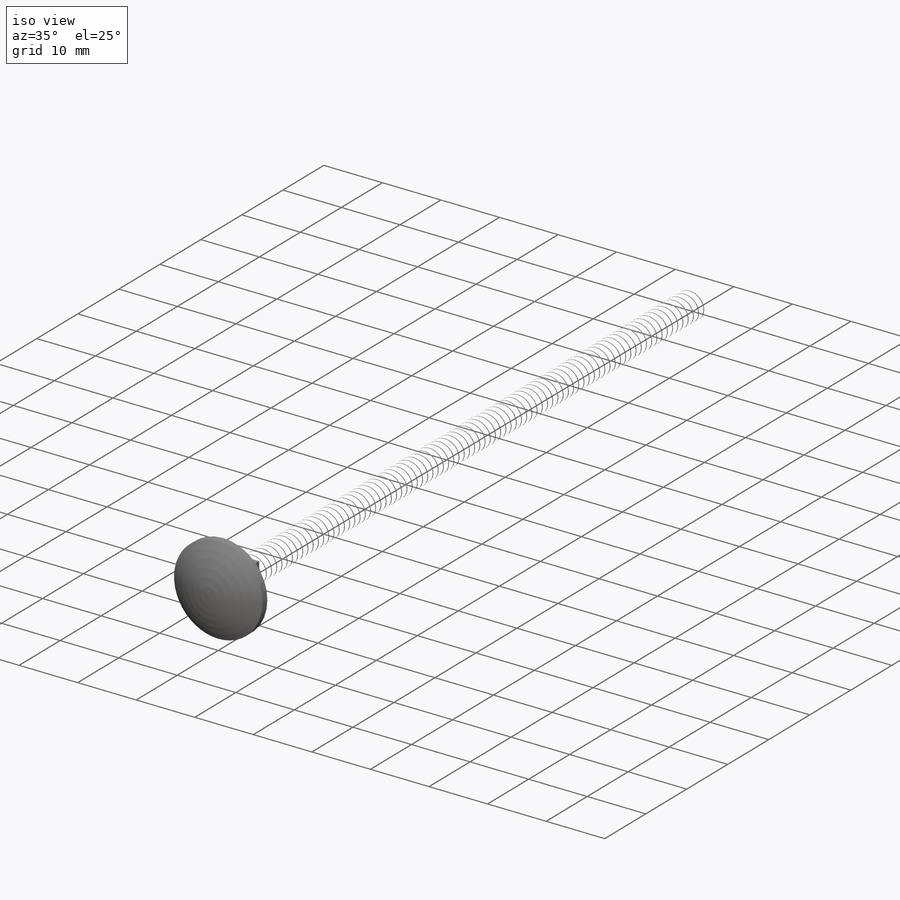
[diagram: iso view]
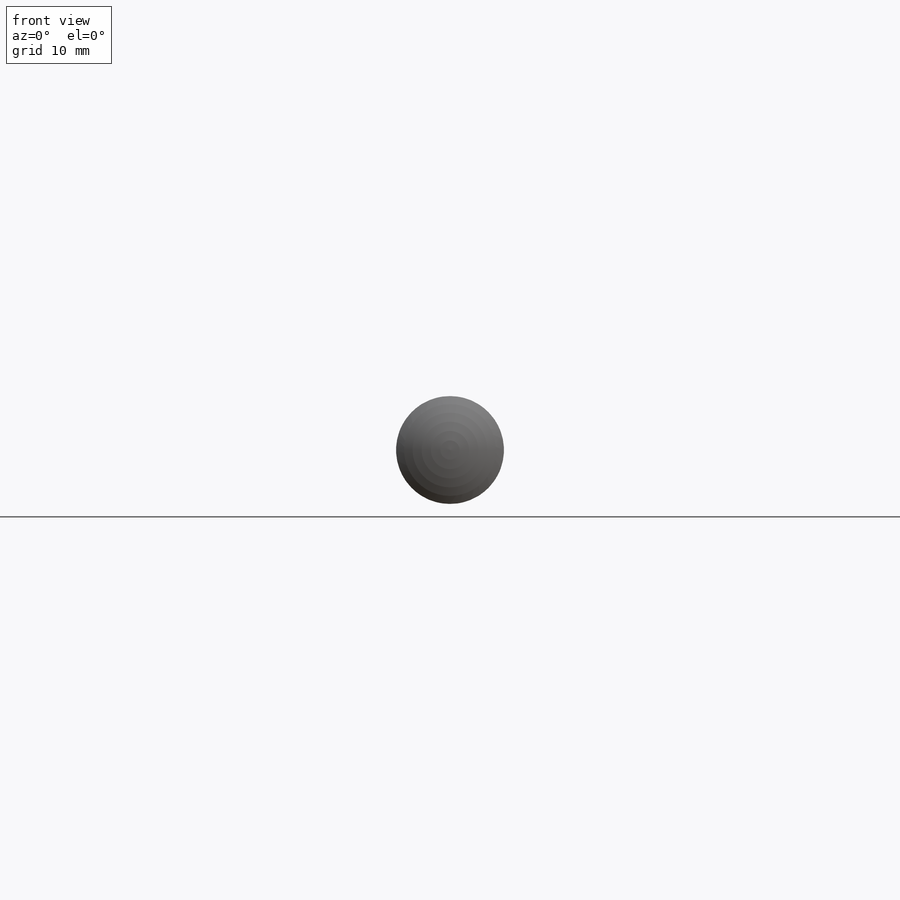
[diagram: front view]
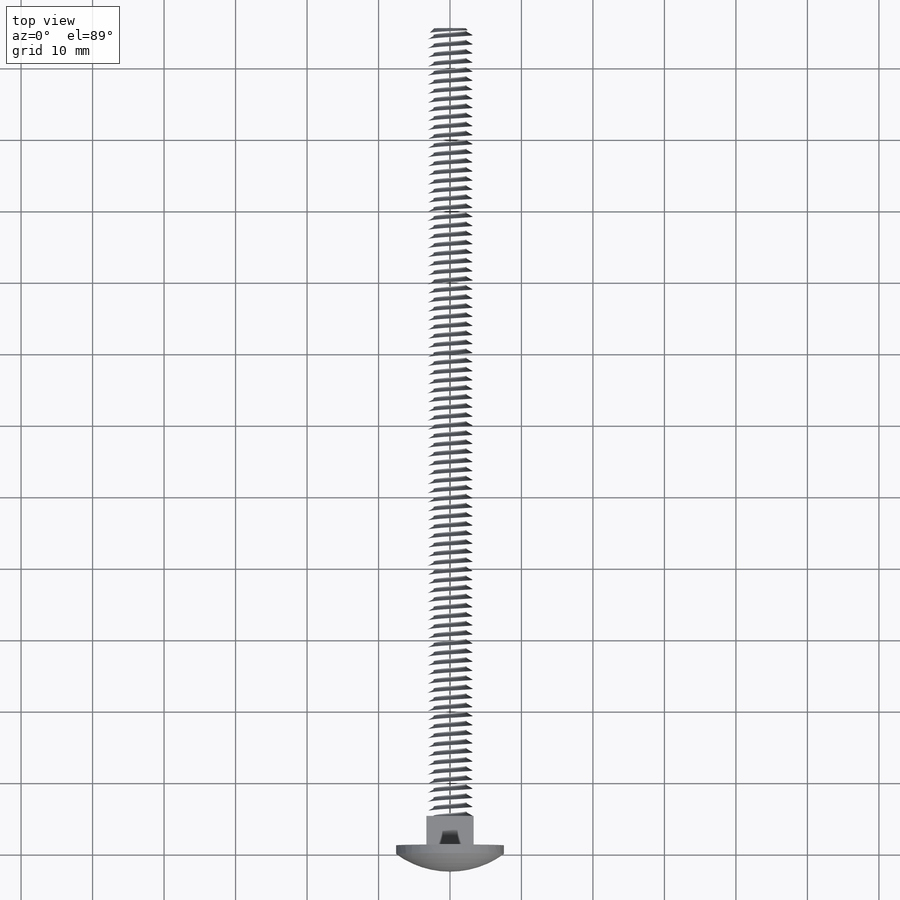
[diagram: top view]
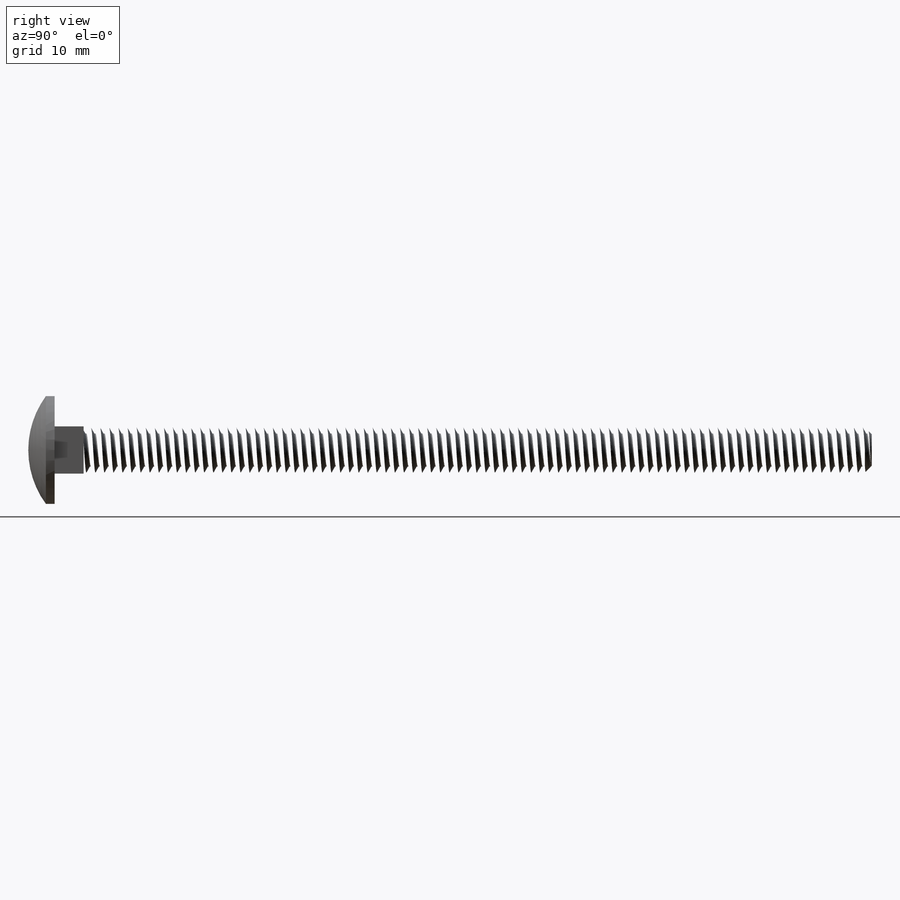
[diagram: right view]
SOLIDWORKS PART (.sldprt)
format: sldprt  version: not decoded by parser v0  size: 2,140,160 bytes
history: native  units: mm
features: sketch x7, extrude x2, material x1, revolve x1, helix x1, sweep x1, chamfer x1, cut_extrude x1, boolean_combine x1 (+13 scaffold rows collapsed)
feature tree (29):
  scaffold x13  (default folders/planes/origin — collapsed)
  material  "Material <not specified>"
  sketch  "Sketch1"  dims[Head Ht=3.683mm Lg=114.3mm Head Dia=15.0876mm D1=~1.21539mm Dia=6.35mm]
  revolve  "Revolve1"  Angle=360deg
  sketch  "Sketch3"  dims[D1=0.0mm]
  helix  "Helix/Spiral1"  Pitch=116.84mm
  sketch  "Sketch2"  dims[c1.D1=~1.771713mm c2.D1=58.0deg c2.D2=~0.15875mm c2.D3=0.635mm]
  sweep  "Sweep1"
  chamfer  "Chamfer1"  Distance=0.9525mm Angle=45deg
  sketch  "Sketch4"  dims[D1=0.0mm]
  cut_extrude  "Cut-Extrude1"  [1 undecoded]
  boolean_combine  "Combine1"
  sketch  "Sketch5"  dims[Neck Wd=6.604mm]
  extrude  "Boss-Extrude1"  Depth=4.064mm Neck Ht=4.064mm
  sketch  "Sketch6"  dims[D1=3.175mm]
  extrude  "Boss-Extrude3"  [1 undecoded]
  sketch  "Sketch4<4>"  dims[D1=152.4mm]
decode coverage: 11 of 15 modeling features carry decoded parameters
note: ~ marks probable driven/reference dimensions
note: 2 parameter values undecoded
note: suppression state not decoded; provenance and decode notes live in map.json
